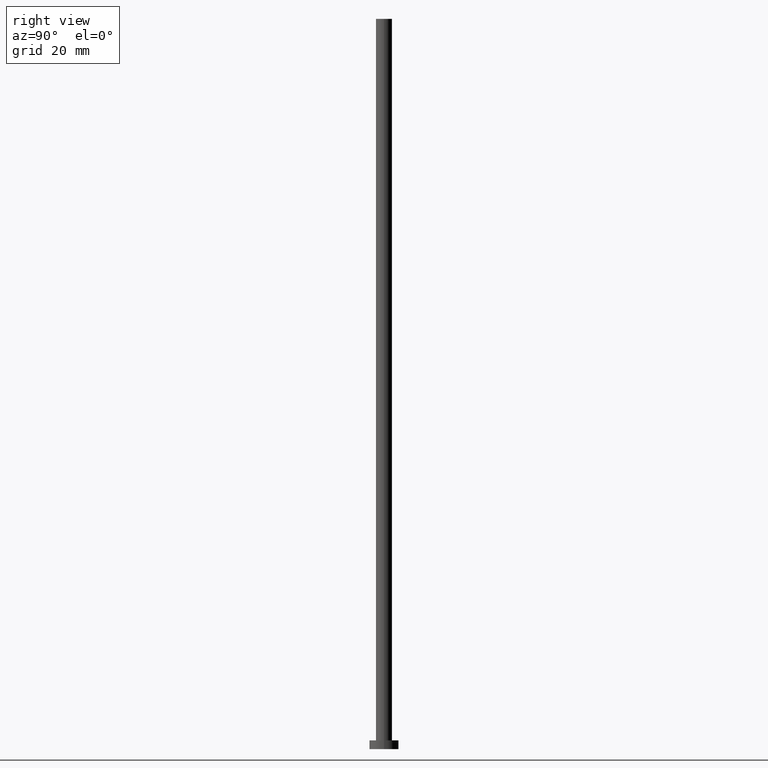
[diagram: clean part render]
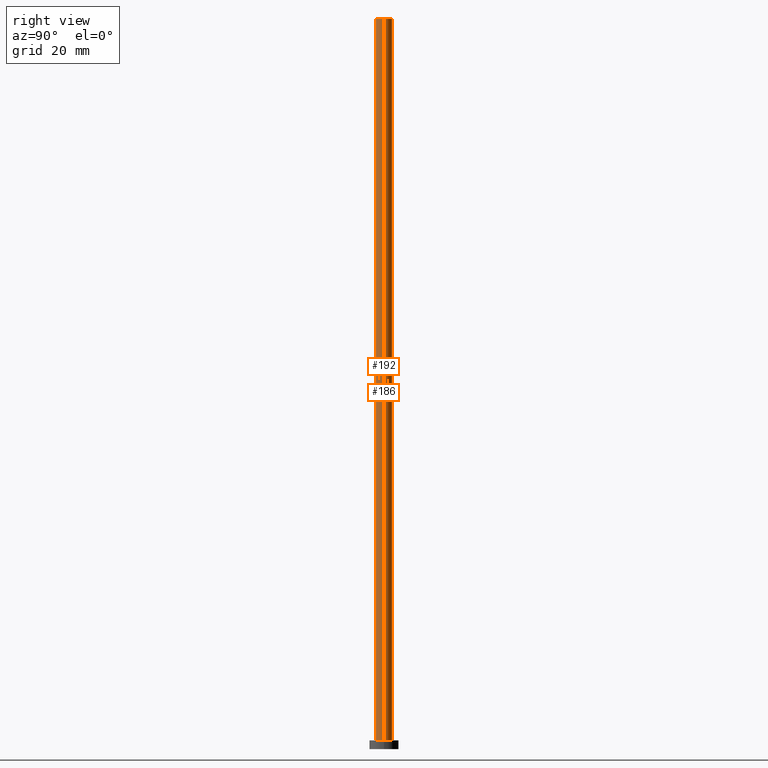
[diagram: same view with one multi-face feature highlighted, each face labeled with its STEP entity id]
A machine part, right view. The highlighted faces form ONE feature: a constant-radius fillet chain: 2 tangent blend faces with common blend radius 2.75 mm. The faces share edges in the B-rep.
Their STEP definitions:
[1] entity #186 (Cylinder):
#6 = VERTEX_POINT ( 'NONE', #94 ) ;
#9 = LINE ( 'NONE', #87, #181 ) ;
#25 = EDGE_CURVE ( 'NONE', #6, #245, #81, .T. ) ;
#30 = CARTESIAN_POINT ( 'NONE',  ( -2.750000000000000000, 0.000000000000000000, 250.0000000000000000 ) ) ;
#38 = ORIENTED_EDGE ( 'NONE', *, *, #70, .T. ) ;
#51 = DIRECTION ( 'NONE',  ( -1.000000000000000000, 0.000000000000000000, 0.000000000000000000 ) ) ;
#55 = DIRECTION ( 'NONE',  ( 0.000000000000000000, 0.000000000000000000, 1.000000000000000000 ) ) ;
#62 = VERTEX_POINT ( 'NONE', #30 ) ;
#70 = EDGE_CURVE ( 'NONE', #93, #6, #9, .T. ) ;
#74 = VECTOR ( 'NONE', #145, 1000.000000000000000 ) ;
#81 = CIRCLE ( 'NONE', #111, 2.750000000000000000 ) ;
#87 = CARTESIAN_POINT ( 'NONE',  ( 2.750000000000000000, 3.367778697655221012E-16, 250.0000000000000000 ) ) ;
#93 = VERTEX_POINT ( 'NONE', #157 ) ;
#94 = CARTESIAN_POINT ( 'NONE',  ( 2.750000000000000000, 3.367778697655221012E-16, 3.000000000000000000 ) ) ;
#95 = DIRECTION ( 'NONE',  ( 1.000000000000000000, 0.000000000000000000, 0.000000000000000000 ) ) ;
#98 = CARTESIAN_POINT ( 'NONE',  ( -2.750000000000000000, 0.000000000000000000, 3.000000000000000000 ) ) ;
#106 = ORIENTED_EDGE ( 'NONE', *, *, #220, .F. ) ;
#107 = EDGE_LOOP ( 'NONE', ( #152, #38, #200, #106 ) ) ;
#111 = AXIS2_PLACEMENT_3D ( 'NONE', #138, #177, #189 ) ;
#114 = CARTESIAN_POINT ( 'NONE',  ( 0.000000000000000000, 0.000000000000000000, 250.0000000000000000 ) ) ;
#117 = DIRECTION ( 'NONE',  ( -0.000000000000000000, -0.000000000000000000, -1.000000000000000000 ) ) ;
#123 = EDGE_CURVE ( 'NONE', #93, #62, #247, .T. ) ;
#138 = CARTESIAN_POINT ( 'NONE',  ( 0.000000000000000000, 0.000000000000000000, 3.000000000000000000 ) ) ;
#140 = CARTESIAN_POINT ( 'NONE',  ( 0.000000000000000000, 0.000000000000000000, 250.0000000000000000 ) ) ;
#145 = DIRECTION ( 'NONE',  ( -0.000000000000000000, -0.000000000000000000, -1.000000000000000000 ) ) ;
#146 = FACE_OUTER_BOUND ( 'NONE', #107, .T. ) ;
#152 = ORIENTED_EDGE ( 'NONE', *, *, #123, .F. ) ;
#157 = CARTESIAN_POINT ( 'NONE',  ( 2.750000000000000000, 3.367778697655221012E-16, 250.0000000000000000 ) ) ;
#169 = AXIS2_PLACEMENT_3D ( 'NONE', #114, #55, #95 ) ;
#177 = DIRECTION ( 'NONE',  ( 0.000000000000000000, 0.000000000000000000, 1.000000000000000000 ) ) ;
#181 = VECTOR ( 'NONE', #117, 1000.000000000000000 ) ;
#186 = ADVANCED_FACE ( 'NONE', ( #146 ), #195, .T. ) ;
#189 = DIRECTION ( 'NONE',  ( 1.000000000000000000, 0.000000000000000000, 0.000000000000000000 ) ) ;
#190 = DIRECTION ( 'NONE',  ( -0.000000000000000000, -0.000000000000000000, -1.000000000000000000 ) ) ;
#195 = CYLINDRICAL_SURFACE ( 'NONE', #251, 2.750000000000000000 ) ;
#200 = ORIENTED_EDGE ( 'NONE', *, *, #25, .T. ) ;
#215 = CARTESIAN_POINT ( 'NONE',  ( -2.750000000000000000, 0.000000000000000000, 250.0000000000000000 ) ) ;
#220 = EDGE_CURVE ( 'NONE', #62, #245, #254, .T. ) ;
#245 = VERTEX_POINT ( 'NONE', #98 ) ;
#247 = CIRCLE ( 'NONE', #169, 2.750000000000000000 ) ;
#251 = AXIS2_PLACEMENT_3D ( 'NONE', #140, #190, #51 ) ;
#254 = LINE ( 'NONE', #215, #74 ) ;
[2] entity #192 (Cylinder):
#6 = VERTEX_POINT ( 'NONE', #94 ) ;
#9 = LINE ( 'NONE', #87, #181 ) ;
#13 = CARTESIAN_POINT ( 'NONE',  ( 0.000000000000000000, 0.000000000000000000, 3.000000000000000000 ) ) ;
#17 = AXIS2_PLACEMENT_3D ( 'NONE', #18, #249, #96 ) ;
#18 = CARTESIAN_POINT ( 'NONE',  ( 0.000000000000000000, 0.000000000000000000, 250.0000000000000000 ) ) ;
#30 = CARTESIAN_POINT ( 'NONE',  ( -2.750000000000000000, 0.000000000000000000, 250.0000000000000000 ) ) ;
#40 = DIRECTION ( 'NONE',  ( 1.000000000000000000, 0.000000000000000000, 0.000000000000000000 ) ) ;
#54 = EDGE_LOOP ( 'NONE', ( #170, #103, #124, #110 ) ) ;
#59 = CIRCLE ( 'NONE', #17, 2.750000000000000000 ) ;
#62 = VERTEX_POINT ( 'NONE', #30 ) ;
#70 = EDGE_CURVE ( 'NONE', #93, #6, #9, .T. ) ;
#74 = VECTOR ( 'NONE', #145, 1000.000000000000000 ) ;
#87 = CARTESIAN_POINT ( 'NONE',  ( 2.750000000000000000, 3.367778697655221012E-16, 250.0000000000000000 ) ) ;
#93 = VERTEX_POINT ( 'NONE', #157 ) ;
#94 = CARTESIAN_POINT ( 'NONE',  ( 2.750000000000000000, 3.367778697655221012E-16, 3.000000000000000000 ) ) ;
#96 = DIRECTION ( 'NONE',  ( 1.000000000000000000, 0.000000000000000000, 0.000000000000000000 ) ) ;
#98 = CARTESIAN_POINT ( 'NONE',  ( -2.750000000000000000, 0.000000000000000000, 3.000000000000000000 ) ) ;
#103 = ORIENTED_EDGE ( 'NONE', *, *, #243, .F. ) ;
#110 = ORIENTED_EDGE ( 'NONE', *, *, #203, .T. ) ;
#117 = DIRECTION ( 'NONE',  ( -0.000000000000000000, -0.000000000000000000, -1.000000000000000000 ) ) ;
#124 = ORIENTED_EDGE ( 'NONE', *, *, #220, .T. ) ;
#130 = AXIS2_PLACEMENT_3D ( 'NONE', #165, #150, #223 ) ;
#133 = FACE_OUTER_BOUND ( 'NONE', #54, .T. ) ;
#145 = DIRECTION ( 'NONE',  ( -0.000000000000000000, -0.000000000000000000, -1.000000000000000000 ) ) ;
#150 = DIRECTION ( 'NONE',  ( -0.000000000000000000, -0.000000000000000000, -1.000000000000000000 ) ) ;
#157 = CARTESIAN_POINT ( 'NONE',  ( 2.750000000000000000, 3.367778697655221012E-16, 250.0000000000000000 ) ) ;
#165 = CARTESIAN_POINT ( 'NONE',  ( 0.000000000000000000, 0.000000000000000000, 250.0000000000000000 ) ) ;
#170 = ORIENTED_EDGE ( 'NONE', *, *, #70, .F. ) ;
#171 = CIRCLE ( 'NONE', #244, 2.750000000000000000 ) ;
#181 = VECTOR ( 'NONE', #117, 1000.000000000000000 ) ;
#184 = CYLINDRICAL_SURFACE ( 'NONE', #130, 2.750000000000000000 ) ;
#192 = ADVANCED_FACE ( 'NONE', ( #133 ), #184, .T. ) ;
#203 = EDGE_CURVE ( 'NONE', #245, #6, #171, .T. ) ;
#215 = CARTESIAN_POINT ( 'NONE',  ( -2.750000000000000000, 0.000000000000000000, 250.0000000000000000 ) ) ;
#220 = EDGE_CURVE ( 'NONE', #62, #245, #254, .T. ) ;
#223 = DIRECTION ( 'NONE',  ( -1.000000000000000000, 0.000000000000000000, 0.000000000000000000 ) ) ;
#235 = DIRECTION ( 'NONE',  ( 0.000000000000000000, 0.000000000000000000, 1.000000000000000000 ) ) ;
#243 = EDGE_CURVE ( 'NONE', #62, #93, #59, .T. ) ;
#244 = AXIS2_PLACEMENT_3D ( 'NONE', #13, #235, #40 ) ;
#245 = VERTEX_POINT ( 'NONE', #98 ) ;
#249 = DIRECTION ( 'NONE',  ( 0.000000000000000000, 0.000000000000000000, 1.000000000000000000 ) ) ;
#254 = LINE ( 'NONE', #215, #74 ) ;